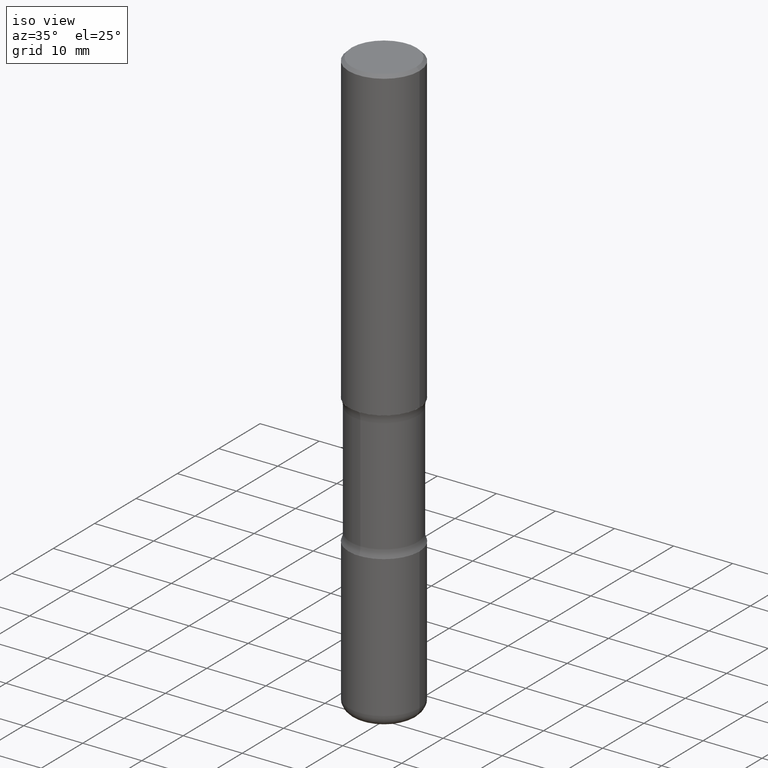
[diagram: clean part render]
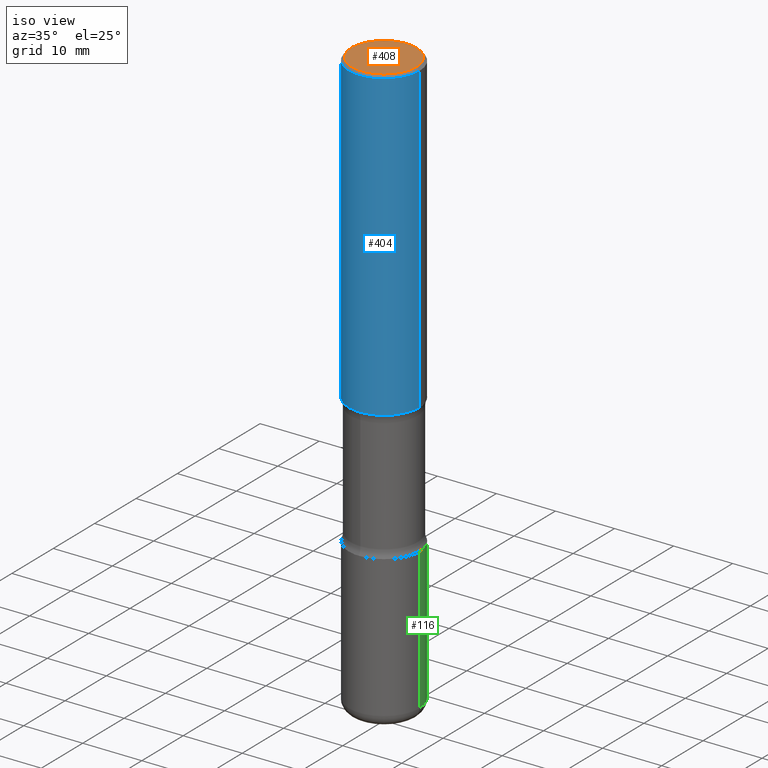
[diagram: same view with three faces highlighted in distinct colors, each labeled with its STEP entity id]
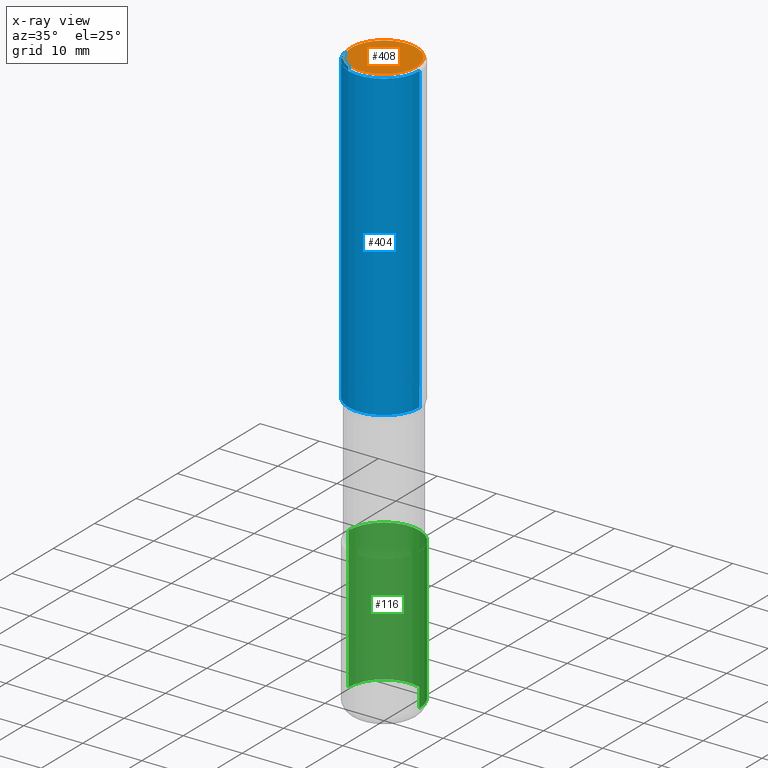
[diagram: x-ray of the same camera — body ghosted, the three highlighted faces saturated]
A machine part, iso view with three faces highlighted in distinct colors.
The next image is the same camera in x-ray (body ghosted, the three faces saturated) — at least one of them is partly hidden behind the body in this view.
Their STEP definitions:

[orange] entity #408 — the highlighted planar face has unit normal (0, -0, -1).
#7 = CARTESIAN_POINT ( 'NONE',  ( 0.2161999999999998368, -1.586759460484351002E-15, 4.268512490111238857E-18 ) ) ;
#11 = ORIENTED_EDGE ( 'NONE', *, *, #64, .T. ) ;
#17 = AXIS2_PLACEMENT_3D ( 'NONE', #124, #479, #215 ) ;
#64 = EDGE_CURVE ( 'NONE', #107, #274, #545, .T. ) ;
#100 = FACE_OUTER_BOUND ( 'NONE', #368, .T. ) ;
#107 = VERTEX_POINT ( 'NONE', #521 ) ;
#124 = CARTESIAN_POINT ( 'NONE',  ( -1.043851414335219820E-46, 1.490343170380447200E-32, 4.268512490100411279E-18 ) ) ;
#186 = AXIS2_PLACEMENT_3D ( 'NONE', #317, #526, #487 ) ;
#215 = DIRECTION ( 'NONE',  ( 1.000000000000000000, -6.982962677686266711E-15, 4.876217060660159599E-29 ) ) ;
#228 = EDGE_CURVE ( 'NONE', #274, #107, #380, .T. ) ;
#252 = CARTESIAN_POINT ( 'NONE',  ( -1.043851414335219820E-46, 1.490343170380447200E-32, 4.268512490100411279E-18 ) ) ;
#256 = AXIS2_PLACEMENT_3D ( 'NONE', #252, #421, #511 ) ;
#274 = VERTEX_POINT ( 'NONE', #7 ) ;
#285 = ORIENTED_EDGE ( 'NONE', *, *, #228, .T. ) ;
#317 = CARTESIAN_POINT ( 'NONE',  ( 1.509716530915769534E-15, 0.2161999999999998368, -7.527240092128373149E-16 ) ) ;
#368 = EDGE_LOOP ( 'NONE', ( #11, #285 ) ) ;
#380 = CIRCLE ( 'NONE', #17, 0.2161999999999998368 ) ;
#408 = ADVANCED_FACE ( 'NONE', ( #100 ), #447, .F. ) ;
#421 = DIRECTION ( 'NONE',  ( -2.445468806185136597E-29, 3.491481338843145583E-15, 1.000000000000000000 ) ) ;
#447 = PLANE ( 'NONE',  #186 ) ;
#479 = DIRECTION ( 'NONE',  ( -2.445468806185136597E-29, 3.491481338843145583E-15, 1.000000000000000000 ) ) ;
#487 = DIRECTION ( 'NONE',  ( -1.000000000000000000, 6.982962677686265922E-15, -4.876176775795935793E-29 ) ) ;
#511 = DIRECTION ( 'NONE',  ( 1.000000000000000000, -6.982962677686266711E-15, 4.876217060660159599E-29 ) ) ;
#521 = CARTESIAN_POINT ( 'NONE',  ( -0.2161999999999998368, 1.544631344304201183E-15, 4.268512490089730842E-18 ) ) ;
#526 = DIRECTION ( 'NONE',  ( 2.438088387897960049E-29, -3.491481338843145188E-15, -1.000000000000000000 ) ) ;
#545 = CIRCLE ( 'NONE', #256, 0.2161999999999998368 ) ;

[blue] entity #404 — the highlighted cylindrical surface (partial cylindrical patch) has radius 5.9995 mm, axis along (-0, 0, 1).
#10 = EDGE_CURVE ( 'NONE', #31, #26, #136, .T. ) ;
#22 = DIRECTION ( 'NONE',  ( 1.000000000000000000, -6.982962677686266711E-15, 4.876176775795936353E-29 ) ) ;
#26 = VERTEX_POINT ( 'NONE', #123 ) ;
#31 = VERTEX_POINT ( 'NONE', #50 ) ;
#50 = CARTESIAN_POINT ( 'NONE',  ( -0.2362000000000001598, -1.930493169962915017E-15, -2.047200000000000131 ) ) ;
#62 = CARTESIAN_POINT ( 'NONE',  ( 0.000000000000000000, 0.000000000000000000, 0.000000000000000000 ) ) ;
#66 = EDGE_LOOP ( 'NONE', ( #331, #278, #321, #458 ) ) ;
#82 = EDGE_CURVE ( 'NONE', #26, #220, #375, .T. ) ;
#89 = CARTESIAN_POINT ( 'NONE',  ( 0.2361999999999999933, -1.649375784469496131E-15, 1.151752954443000088E-29 ) ) ;
#105 = CYLINDRICAL_SURFACE ( 'NONE', #178, 0.2361999999999999933 ) ;
#110 = VECTOR ( 'NONE', #465, 39.37007874015748143 ) ;
#114 = VERTEX_POINT ( 'NONE', #303 ) ;
#123 = CARTESIAN_POINT ( 'NONE',  ( 0.2362000000000001321, -8.797136381349186305E-15, -2.047200000000000131 ) ) ;
#132 = CARTESIAN_POINT ( 'NONE',  ( 4.890937612370289799E-31, -6.982962677686315028E-17, -0.02000000000000006981 ) ) ;
#136 = CIRCLE ( 'NONE', #231, 0.2362000000000001321 ) ;
#178 = AXIS2_PLACEMENT_3D ( 'NONE', #62, #534, #22 ) ;
#191 = FACE_OUTER_BOUND ( 'NONE', #66, .T. ) ;
#210 = DIRECTION ( 'NONE',  ( -2.445468806185136597E-29, 3.491481338843145583E-15, 1.000000000000000000 ) ) ;
#220 = VERTEX_POINT ( 'NONE', #307 ) ;
#222 = CIRCLE ( 'NONE', #445, 0.2361999999999998823 ) ;
#231 = AXIS2_PLACEMENT_3D ( 'NONE', #299, #560, #378 ) ;
#255 = DIRECTION ( 'NONE',  ( -2.445468806185136877E-29, 3.491481338843145188E-15, 1.000000000000000000 ) ) ;
#271 = VECTOR ( 'NONE', #255, 39.37007874015748143 ) ;
#278 = ORIENTED_EDGE ( 'NONE', *, *, #10, .T. ) ;
#299 = CARTESIAN_POINT ( 'NONE',  ( 5.006363740022212241E-29, -7.147760596879688202E-15, -2.047200000000000131 ) ) ;
#302 = DIRECTION ( 'NONE',  ( 1.000000000000000000, -6.982962677686267499E-15, 0.000000000000000000 ) ) ;
#303 = CARTESIAN_POINT ( 'NONE',  ( -0.2361999999999998823, 1.579546157692632438E-15, -0.02000000000000006981 ) ) ;
#307 = CARTESIAN_POINT ( 'NONE',  ( 0.2361999999999998823, -1.690279253850498179E-15, -0.02000000000000006981 ) ) ;
#321 = ORIENTED_EDGE ( 'NONE', *, *, #82, .T. ) ;
#331 = ORIENTED_EDGE ( 'NONE', *, *, #340, .F. ) ;
#340 = EDGE_CURVE ( 'NONE', #31, #114, #510, .T. ) ;
#347 = CARTESIAN_POINT ( 'NONE',  ( -0.2361999999999999933, 1.678301941865356591E-15, -1.161852468318208757E-29 ) ) ;
#367 = EDGE_CURVE ( 'NONE', #114, #220, #222, .T. ) ;
#375 = LINE ( 'NONE', #89, #271 ) ;
#378 = DIRECTION ( 'NONE',  ( 1.000000000000000000, -6.982962677686269077E-15, 0.000000000000000000 ) ) ;
#404 = ADVANCED_FACE ( 'NONE', ( #191 ), #105, .T. ) ;
#445 = AXIS2_PLACEMENT_3D ( 'NONE', #132, #210, #302 ) ;
#458 = ORIENTED_EDGE ( 'NONE', *, *, #367, .F. ) ;
#465 = DIRECTION ( 'NONE',  ( -2.445468806185136877E-29, 3.491481338843145188E-15, 1.000000000000000000 ) ) ;
#510 = LINE ( 'NONE', #347, #110 ) ;
#534 = DIRECTION ( 'NONE',  ( -2.445468806185136597E-29, 3.491481338843145583E-15, 1.000000000000000000 ) ) ;
#560 = DIRECTION ( 'NONE',  ( -2.445468806185136597E-29, 3.491481338843145583E-15, 1.000000000000000000 ) ) ;

[green] entity #116 — the highlighted cylindrical surface (partial cylindrical patch) has radius 5.9995 mm, axis along (-0, 0, 1).
#6 = DIRECTION ( 'NONE',  ( -2.445468806185136597E-29, 3.491481338843145583E-15, 1.000000000000000000 ) ) ;
#21 = LINE ( 'NONE', #363, #199 ) ;
#24 = VERTEX_POINT ( 'NONE', #509 ) ;
#102 = ORIENTED_EDGE ( 'NONE', *, *, #427, .F. ) ;
#116 = ADVANCED_FACE ( 'NONE', ( #384 ), #260, .T. ) ;
#122 = LINE ( 'NONE', #541, #139 ) ;
#139 = VECTOR ( 'NONE', #251, 39.37007874015748143 ) ;
#151 = ORIENTED_EDGE ( 'NONE', *, *, #466, .T. ) ;
#157 = CIRCLE ( 'NONE', #264, 0.2362000000000001321 ) ;
#163 = VERTEX_POINT ( 'NONE', #289 ) ;
#170 = EDGE_CURVE ( 'NONE', #24, #182, #122, .T. ) ;
#176 = DIRECTION ( 'NONE',  ( 1.000000000000000000, -6.982962677686266711E-15, 4.876176775795936353E-29 ) ) ;
#182 = VERTEX_POINT ( 'NONE', #419 ) ;
#196 = EDGE_LOOP ( 'NONE', ( #151, #322, #102, #361 ) ) ;
#199 = VECTOR ( 'NONE', #397, 39.37007874015748143 ) ;
#227 = DIRECTION ( 'NONE',  ( -2.445468806185136597E-29, 3.491481338843145583E-15, 1.000000000000000000 ) ) ;
#247 = VERTEX_POINT ( 'NONE', #385 ) ;
#251 = DIRECTION ( 'NONE',  ( -2.445468806185136877E-29, 3.491481338843145188E-15, 1.000000000000000000 ) ) ;
#260 = CYLINDRICAL_SURFACE ( 'NONE', #394, 0.2362000000000001598 ) ;
#264 = AXIS2_PLACEMENT_3D ( 'NONE', #356, #280, #398 ) ;
#280 = DIRECTION ( 'NONE',  ( -2.445468806185136597E-29, 3.491481338843145583E-15, 1.000000000000000000 ) ) ;
#289 = CARTESIAN_POINT ( 'NONE',  ( -0.2362000000000001321, -1.014333014925670672E-14, -2.913400000000000212 ) ) ;
#322 = ORIENTED_EDGE ( 'NONE', *, *, #439, .T. ) ;
#335 = CIRCLE ( 'NONE', #507, 0.2362000000000002153 ) ;
#356 = CARTESIAN_POINT ( 'NONE',  ( 7.124628819939777829E-29, -1.017208173258562247E-14, -2.913400000000000212 ) ) ;
#361 = ORIENTED_EDGE ( 'NONE', *, *, #170, .F. ) ;
#363 = CARTESIAN_POINT ( 'NONE',  ( -0.2362000000000001598, 1.678301941865357775E-15, -1.161852468318209598E-29 ) ) ;
#384 = FACE_OUTER_BOUND ( 'NONE', #196, .T. ) ;
#385 = CARTESIAN_POINT ( 'NONE',  ( -0.2362000000000003264, -1.179288050779314737E-14, -3.858299999999998509 ) ) ;
#394 = AXIS2_PLACEMENT_3D ( 'NONE', #417, #6, #176 ) ;
#397 = DIRECTION ( 'NONE',  ( -2.445468806185136877E-29, 3.491481338843145188E-15, 1.000000000000000000 ) ) ;
#398 = DIRECTION ( 'NONE',  ( 1.000000000000000000, -6.982962677686269077E-15, 0.000000000000000000 ) ) ;
#400 = DIRECTION ( 'NONE',  ( 1.000000000000000000, -6.982962677686266711E-15, 0.000000000000000000 ) ) ;
#417 = CARTESIAN_POINT ( 'NONE',  ( 0.000000000000000000, 0.000000000000000000, 0.000000000000000000 ) ) ;
#419 = CARTESIAN_POINT ( 'NONE',  ( 0.2362000000000001321, -1.182145751705511899E-14, -2.913400000000000212 ) ) ;
#427 = EDGE_CURVE ( 'NONE', #182, #163, #157, .T. ) ;
#439 = EDGE_CURVE ( 'NONE', #247, #163, #21, .T. ) ;
#466 = EDGE_CURVE ( 'NONE', #24, #247, #335, .T. ) ;
#507 = AXIS2_PLACEMENT_3D ( 'NONE', #538, #227, #400 ) ;
#509 = CARTESIAN_POINT ( 'NONE',  ( 0.2362000000000003264, -1.512055823412800345E-14, -3.858299999999998509 ) ) ;
#538 = CARTESIAN_POINT ( 'NONE',  ( 9.435352294904109900E-29, -1.347118244965850534E-14, -3.858299999999998509 ) ) ;
#541 = CARTESIAN_POINT ( 'NONE',  ( 0.2362000000000001598, -1.649375784469497314E-15, 1.151752954443000929E-29 ) ) ;